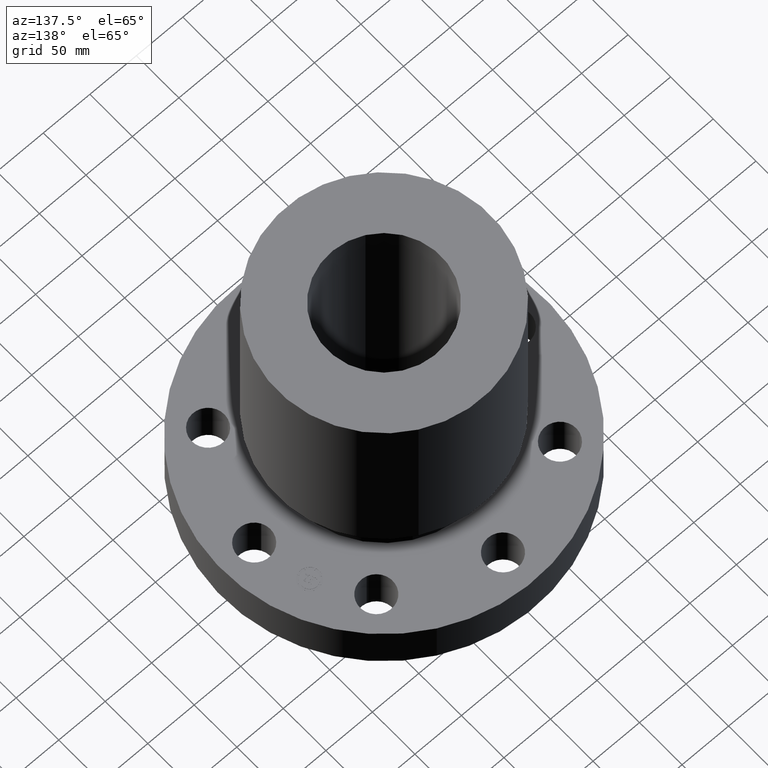
[diagram: clean part render]
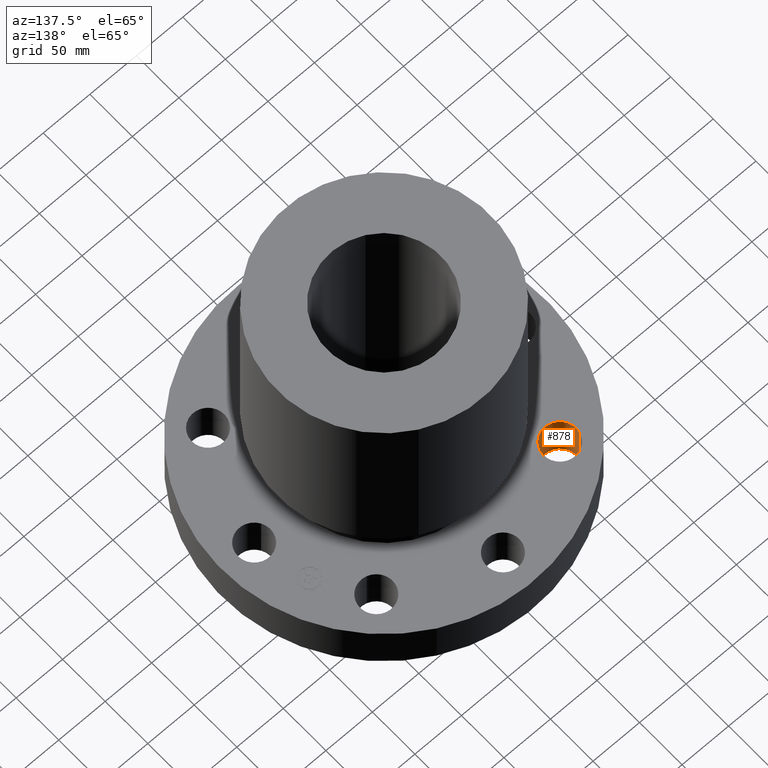
[diagram: same view with one face highlighted and labeled with its STEP entity id]
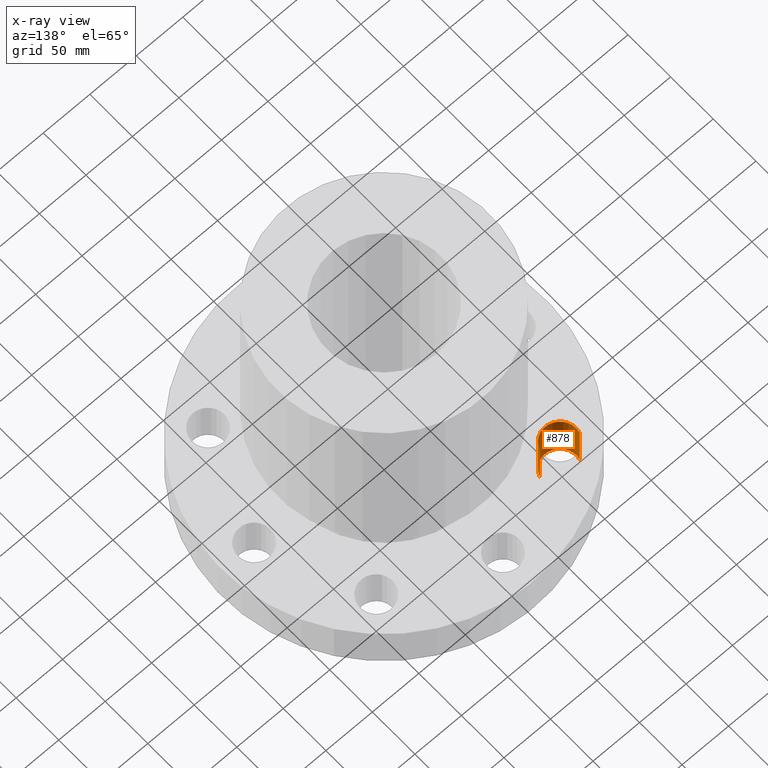
[diagram: x-ray of the same camera — body ghosted, the highlighted face saturated]
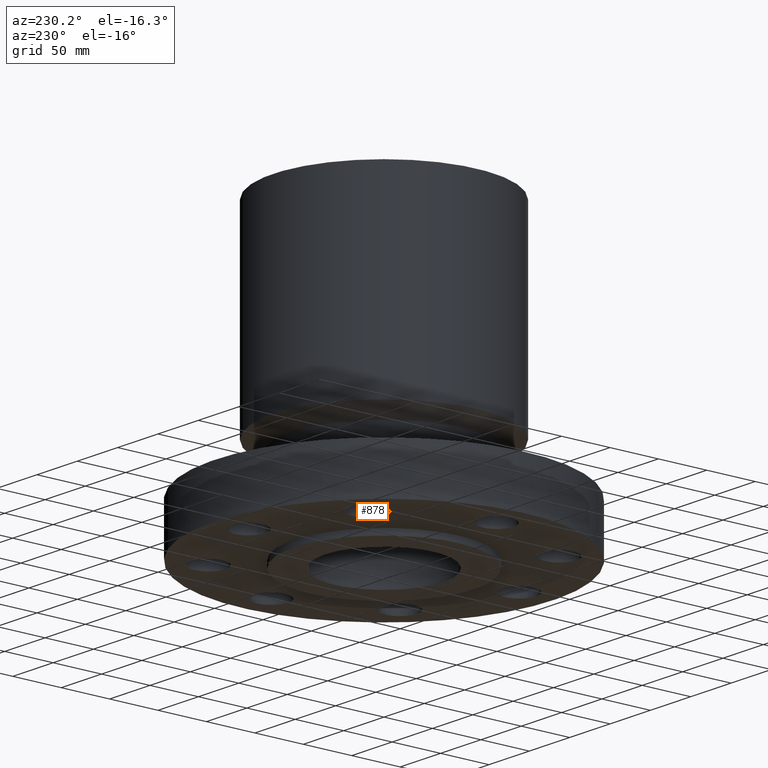
[diagram: same view with one face highlighted and labeled with its STEP entity id]
A machine part, auxiliary view. The second image highlights one B-rep face of the part: STEP entity #878.
The next image is the same camera in x-ray: the body ghosted, the highlighted face saturated — about 0% of this face is hidden behind the body in this view.
A second angle (auxiliary view) of the same face is appended — the face is thin or edge-on in the first view.
In plain terms, the highlighted cylindrical surface (edge-blend (fillet) strip) has radius 17.526 mm, axis along (0, 0, 1).
Its self-contained STEP definition (entity closure, byte-faithful):
#208=AXIS2_PLACEMENT_3D('Circle Axis2P3D',#206,#207,$) ;
#839=AXIS2_PLACEMENT_3D('Cylinder Axis2P3D',#836,#837,#838) ;
#869=AXIS2_PLACEMENT_3D('Circle Axis2P3D',#867,#868,$) ;
#201=CARTESIAN_POINT('Vertex',(-4.55117654123,4.08334957303,0.)) ;
#203=CARTESIAN_POINT('Vertex',(-3.22699805185,3.69482502005,0.)) ;
#206=CARTESIAN_POINT('Axis2P3D Location',(-3.88908729654,3.88908729654,0.)) ;
#836=CARTESIAN_POINT('Axis2P3D Location',(-3.88908729654,3.88908729654,0.00393700787402)) ;
#841=CARTESIAN_POINT('Line Origine',(-3.22699805185,3.69482502005,1.)) ;
#845=CARTESIAN_POINT('Vertex',(-3.22699805185,3.69482502005,2.00000000001)) ;
#852=CARTESIAN_POINT('Vertex',(-4.55117654123,4.08334957303,2.00000000001)) ;
#855=CARTESIAN_POINT('Line Origine',(-4.55117654123,4.08334957303,1.)) ;
#867=CARTESIAN_POINT('Axis2P3D Location',(-3.88908729654,3.88908729654,2.00000000001)) ;
#207=DIRECTION('Axis2P3D Direction',(0.,0.,-0.0393700787402)) ;
#837=DIRECTION('Axis2P3D Direction',(0.,0.,0.0393700787402)) ;
#838=DIRECTION('Axis2P3D XDirection',(-0.0377775444876,0.0110842335096,0.)) ;
#842=DIRECTION('Vector Direction',(0.,0.,0.0393700787402)) ;
#856=DIRECTION('Vector Direction',(0.,0.,0.0393700787402)) ;
#868=DIRECTION('Axis2P3D Direction',(0.,0.,0.0393700787402)) ;
#843=VECTOR('Line Direction',#842,0.0393700787402) ;
#857=VECTOR('Line Direction',#856,0.0393700787402) ;
#873=ORIENTED_EDGE('',*,*,#859,.F.) ;
#874=ORIENTED_EDGE('',*,*,#871,.F.) ;
#875=ORIENTED_EDGE('',*,*,#847,.T.) ;
#876=ORIENTED_EDGE('',*,*,#210,.T.) ;
#878=ADVANCED_FACE('PartBody',(#877),#840,.F.) ;
#209=CIRCLE('generated circle',#208,0.690000000003) ;
#870=CIRCLE('generated circle',#869,0.690000000003) ;
#840=CYLINDRICAL_SURFACE('generated cylinder',#839,0.690000000003) ;
#210=EDGE_CURVE('',#204,#202,#209,.T.) ;
#847=EDGE_CURVE('',#846,#204,#844,.F.) ;
#859=EDGE_CURVE('',#853,#202,#858,.F.) ;
#871=EDGE_CURVE('',#846,#853,#870,.F.) ;
#872=EDGE_LOOP('',(#873,#874,#875,#876)) ;
#877=FACE_OUTER_BOUND('',#872,.T.) ;
#844=LINE('Line',#841,#843) ;
#858=LINE('Line',#855,#857) ;
#202=VERTEX_POINT('',#201) ;
#204=VERTEX_POINT('',#203) ;
#846=VERTEX_POINT('',#845) ;
#853=VERTEX_POINT('',#852) ;